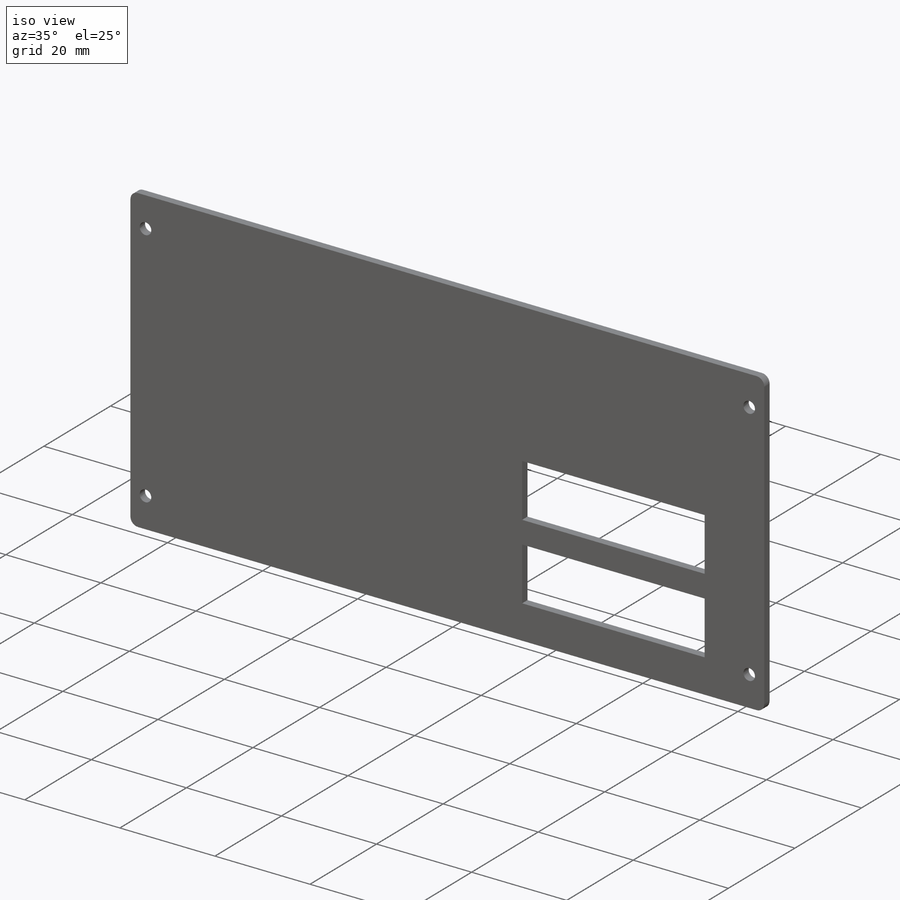
[diagram: iso view]
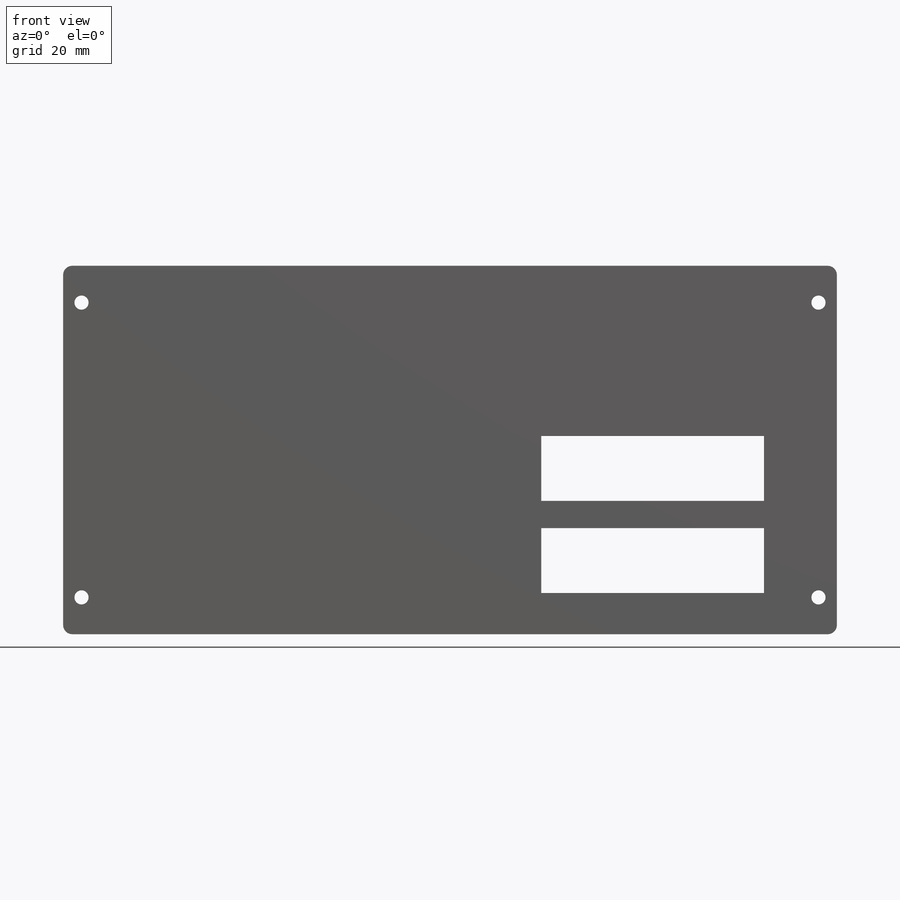
[diagram: front view]
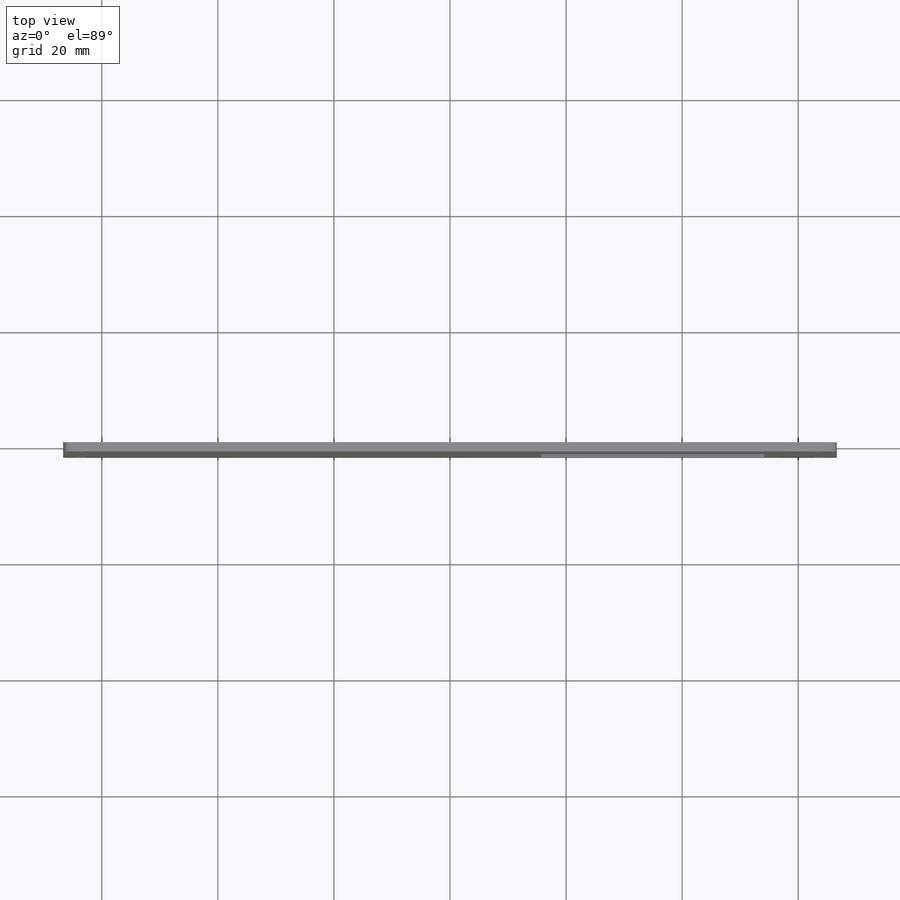
[diagram: top view]
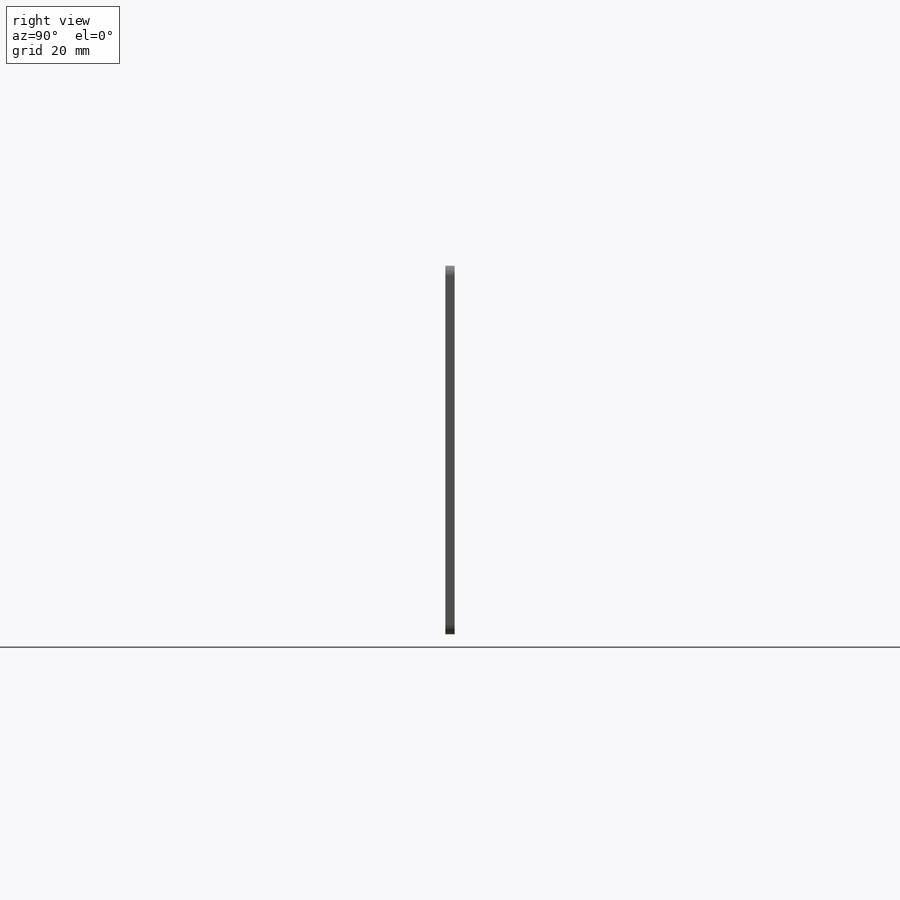
[diagram: right view]
SOLIDWORKS PART (.sldprt)
format: sldprt  version: not decoded by parser v0  size: 537,600 bytes
history: native  units: mm
features: sketch x5, cut_extrude x2, material x1, extrude x1, hole x1, fillet x1 (+16 scaffold rows collapsed)
feature tree (27):
  scaffold x16  (default folders/planes/origin — collapsed)
  material  "5052-H32"
  sketch  "Sketch1"  dims[D1=133.35mm D2=63.5mm]
  extrude  "Boss-Extrude1"  Depth=1.6002mm
  sketch  "Sketch2"  dims[D1=38.3794mm D2=11.176mm D3=15.875mm D4=12.7mm D5=31.75mm]
  cut_extrude  "Cut-Extrude1"  [1 undecoded]
  hole  "#2 Clearance Hole1"  Diameter=2.4384mm Depth=1.6002mm
  sketch  "Sketch4"  dims[D1=6.35mm D2=3.175mm D3=3.175mm D4=6.35mm]
  sketch  "Sketch3"  dims[hole-wizard template sketch: 60 standard entries collapsed; hole parameters kept: c18.Thru Hole Depth=1.6002mm]
  fillet  "Fillet1"  Radius=1.5875mm
  sketch  "Sketch5"  dims[D1=3.81mm D2=3.81mm D3=6.35mm]
  cut_extrude  "Cut-Extrude2"  Depth=0.2286mm
decode coverage: 9 of 10 modeling features carry decoded parameters
note: ~ marks probable driven/reference dimensions
note: 1 parameter value undecoded
note: suppression state not decoded; provenance and decode notes live in map.json
